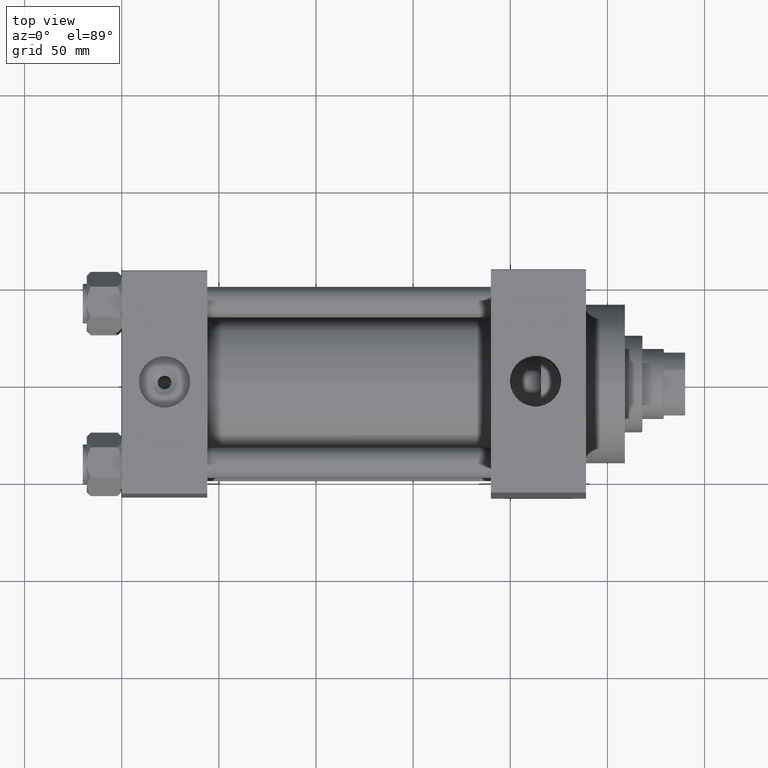
[diagram: clean part render]
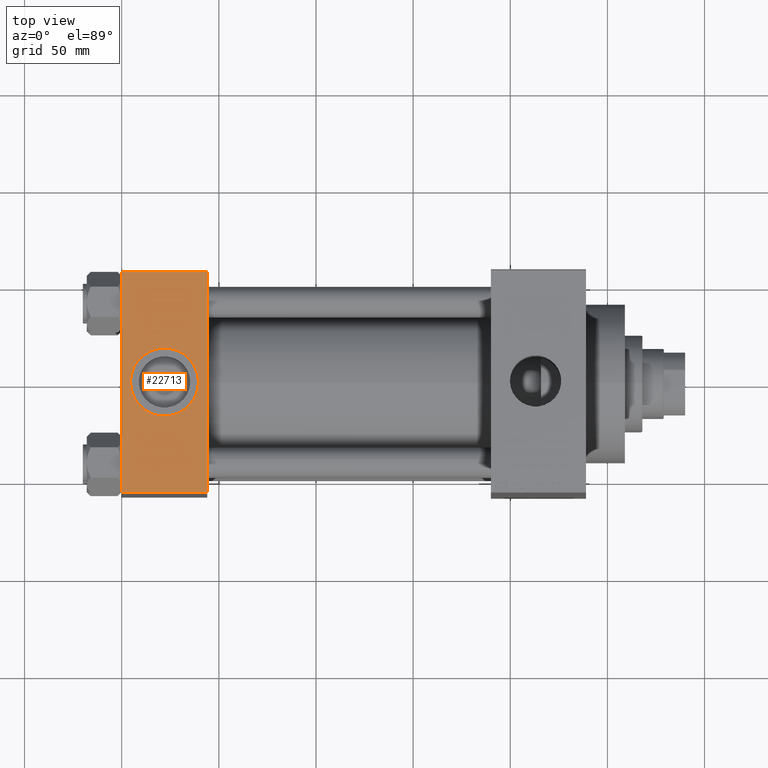
[diagram: same view with one face highlighted and labeled with its STEP entity id]
A machine part, top view. The second image highlights one B-rep face of the part: STEP entity #22713.
In plain terms, the highlighted planar face has unit normal (0, 0, -1).
Its self-contained STEP definition (entity closure, byte-faithful):
#412 = DIRECTION ( 'NONE',  ( 0.000000000000000000, 0.000000000000000000, 1.000000000000000000 ) ) ;
#873 = VECTOR ( 'NONE', #27883, 1000.000000000000000 ) ;
#1335 = ORIENTED_EDGE ( 'NONE', *, *, #29139, .T. ) ;
#2602 = CARTESIAN_POINT ( 'NONE',  ( 44.00000000000000000, 57.49999999999999289, 57.50000000000000711 ) ) ;
#5369 = ORIENTED_EDGE ( 'NONE', *, *, #38144, .T. ) ;
#7091 = ORIENTED_EDGE ( 'NONE', *, *, #12958, .F. ) ;
#7505 = CARTESIAN_POINT ( 'NONE',  ( 44.00000000000000000, -57.00000000000003553, 57.49999999999999289 ) ) ;
#7822 = EDGE_CURVE ( 'NONE', #38340, #18854, #33131, .T. ) ;
#8379 = DIRECTION ( 'NONE',  ( 1.000000000000000000, 0.000000000000000000, 0.000000000000000000 ) ) ;
#10962 = VECTOR ( 'NONE', #36510, 1000.000000000000000 ) ;
#12028 = DIRECTION ( 'NONE',  ( 0.000000000000000000, 0.000000000000000000, 1.000000000000000000 ) ) ;
#12958 = EDGE_CURVE ( 'NONE', #24077, #31016, #16268, .T. ) ;
#13019 = VECTOR ( 'NONE', #28637, 1000.000000000000000 ) ;
#13511 = DIRECTION ( 'NONE',  ( 0.000000000000000000, 1.000000000000000000, 1.206764157201257045E-16 ) ) ;
#13748 = FACE_BOUND ( 'NONE', #25556, .T. ) ;
#13904 = EDGE_CURVE ( 'NONE', #24077, #18700, #25375, .T. ) ;
#14453 = DIRECTION ( 'NONE',  ( 1.000000000000000000, 0.000000000000000000, 0.000000000000000000 ) ) ;
#15717 = AXIS2_PLACEMENT_3D ( 'NONE', #2602, #21470, #13511 ) ;
#16268 = LINE ( 'NONE', #19892, #873 ) ;
#17039 = LINE ( 'NONE', #47047, #13019 ) ;
#17775 = EDGE_CURVE ( 'NONE', #18854, #38340, #34165, .T. ) ;
#18700 = VERTEX_POINT ( 'NONE', #38269 ) ;
#18854 = VERTEX_POINT ( 'NONE', #25895 ) ;
#19892 = CARTESIAN_POINT ( 'NONE',  ( 44.00000000000000000, 57.49999999999999289, 57.50000000000000711 ) ) ;
#20324 = CARTESIAN_POINT ( 'NONE',  ( 39.50000000000000000, -8.673617379884035472E-15, 57.50000000000000000 ) ) ;
#21083 = ORIENTED_EDGE ( 'NONE', *, *, #7822, .F. ) ;
#21470 = DIRECTION ( 'NONE',  ( 0.000000000000000000, 1.206764157201257045E-16, -1.000000000000000000 ) ) ;
#21917 = VERTEX_POINT ( 'NONE', #22243 ) ;
#22243 = CARTESIAN_POINT ( 'NONE',  ( 0.000000000000000000, -57.00000000000003553, 57.49999999999999289 ) ) ;
#22713 = ADVANCED_FACE ( 'NONE', ( #13748, #24640 ), #36474, .F. ) ;
#22900 = VECTOR ( 'NONE', #37035, 1000.000000000000000 ) ;
#23891 = AXIS2_PLACEMENT_3D ( 'NONE', #34041, #12028, #8379 ) ;
#24077 = VERTEX_POINT ( 'NONE', #30545 ) ;
#24640 = FACE_OUTER_BOUND ( 'NONE', #38455, .T. ) ;
#25375 = LINE ( 'NONE', #40141, #10962 ) ;
#25556 = EDGE_LOOP ( 'NONE', ( #21083, #31327 ) ) ;
#25674 = AXIS2_PLACEMENT_3D ( 'NONE', #33088, #412, #14453 ) ;
#25895 = CARTESIAN_POINT ( 'NONE',  ( 4.499999999999997335, -6.530485481376167224E-15, 57.50000000000000000 ) ) ;
#27883 = DIRECTION ( 'NONE',  ( 0.000000000000000000, -1.000000000000000000, -1.206764157201257045E-16 ) ) ;
#28637 = DIRECTION ( 'NONE',  ( 0.000000000000000000, -1.000000000000000000, -1.206764157201257045E-16 ) ) ;
#29139 = EDGE_CURVE ( 'NONE', #21917, #31016, #36064, .T. ) ;
#30545 = CARTESIAN_POINT ( 'NONE',  ( 44.00000000000000000, 57.00000000000000711, 57.50000000000000711 ) ) ;
#31016 = VERTEX_POINT ( 'NONE', #47490 ) ;
#31327 = ORIENTED_EDGE ( 'NONE', *, *, #17775, .F. ) ;
#33088 = CARTESIAN_POINT ( 'NONE',  ( 22.00000000000000000, -8.673617379884035472E-15, 57.50000000000000000 ) ) ;
#33131 = CIRCLE ( 'NONE', #23891, 17.50000000000000000 ) ;
#34041 = CARTESIAN_POINT ( 'NONE',  ( 22.00000000000000000, -8.673617379884035472E-15, 57.50000000000000000 ) ) ;
#34165 = CIRCLE ( 'NONE', #25674, 17.50000000000000000 ) ;
#35281 = ORIENTED_EDGE ( 'NONE', *, *, #13904, .T. ) ;
#36064 = LINE ( 'NONE', #7505, #22900 ) ;
#36474 = PLANE ( 'NONE',  #15717 ) ;
#36510 = DIRECTION ( 'NONE',  ( -1.000000000000000000, 0.000000000000000000, 0.000000000000000000 ) ) ;
#37035 = DIRECTION ( 'NONE',  ( 1.000000000000000000, 0.000000000000000000, 0.000000000000000000 ) ) ;
#38144 = EDGE_CURVE ( 'NONE', #18700, #21917, #17039, .T. ) ;
#38269 = CARTESIAN_POINT ( 'NONE',  ( 0.000000000000000000, 57.00000000000000711, 57.50000000000000711 ) ) ;
#38340 = VERTEX_POINT ( 'NONE', #20324 ) ;
#38455 = EDGE_LOOP ( 'NONE', ( #5369, #1335, #7091, #35281 ) ) ;
#40141 = CARTESIAN_POINT ( 'NONE',  ( 0.000000000000000000, 57.00000000000000711, 57.50000000000000711 ) ) ;
#47047 = CARTESIAN_POINT ( 'NONE',  ( 0.000000000000000000, 57.49999999999999289, 57.50000000000000711 ) ) ;
#47490 = CARTESIAN_POINT ( 'NONE',  ( 44.00000000000000000, -57.00000000000003553, 57.49999999999999289 ) ) ;